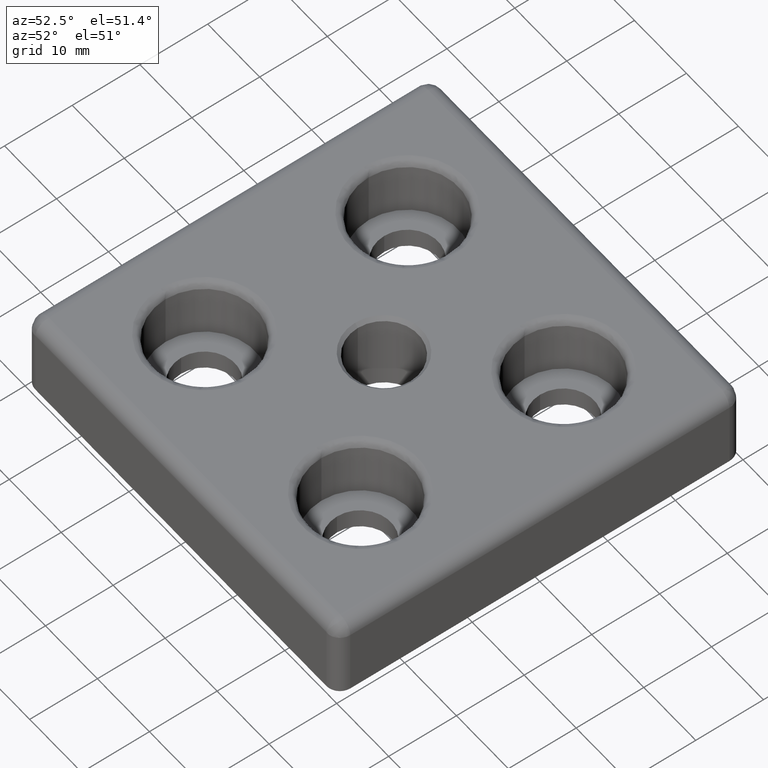
[diagram: clean part render]
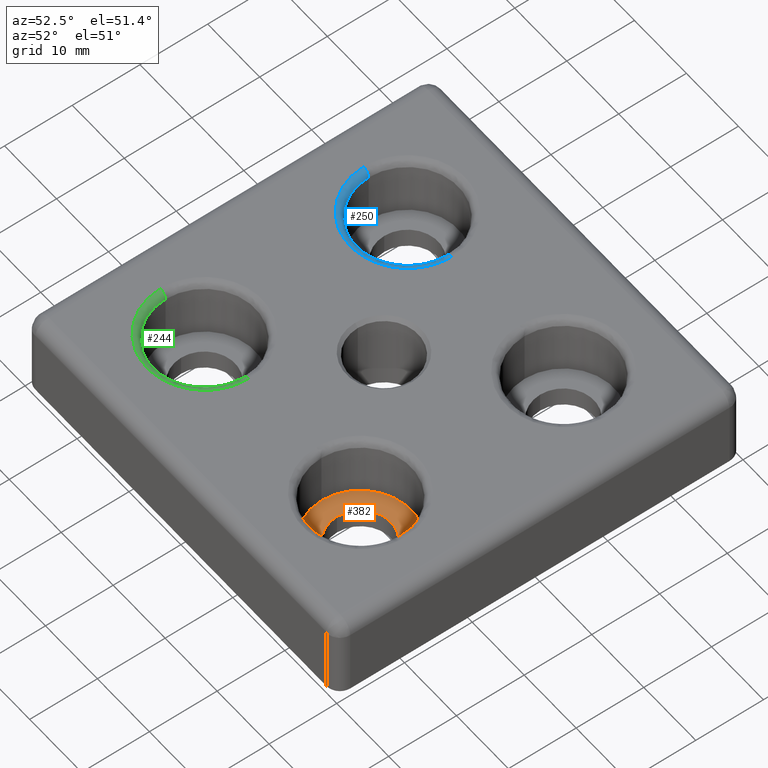
[diagram: same view with three faces highlighted in distinct colors, each labeled with its STEP entity id]
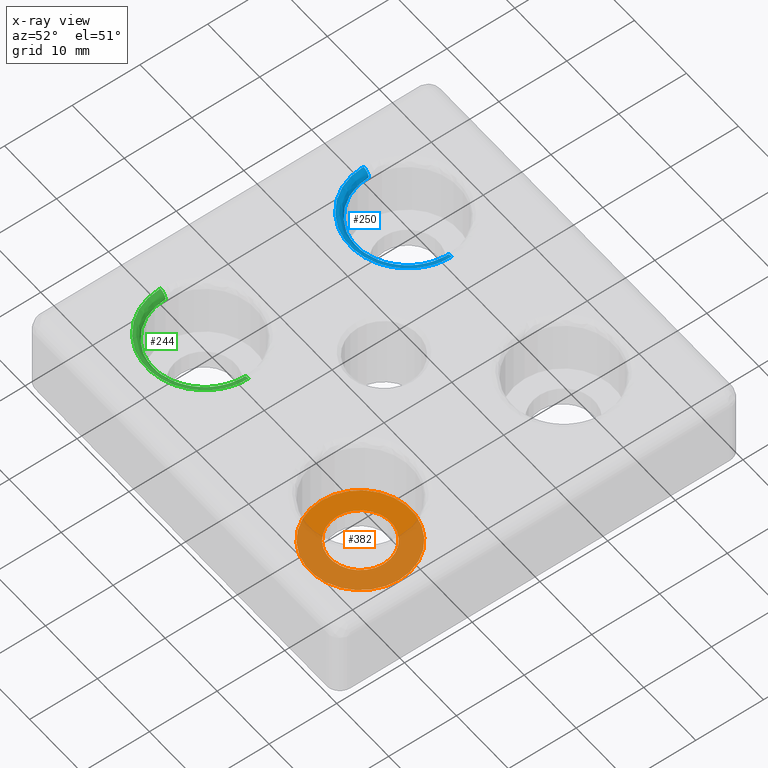
[diagram: x-ray of the same camera — body ghosted, the three highlighted faces saturated]
A machine part, auxiliary view with three faces highlighted in distinct colors.
The next image is the same camera in x-ray (body ghosted, the three faces saturated) — at least one of them is partly hidden behind the body in this view.
Their STEP definitions:

[orange] entity #382 — the highlighted planar face has unit normal (0, 0, 1).
#382=ADVANCED_FACE('NONE',(#883,#884),#885,.T.);
#883=FACE_OUTER_BOUND('',#2126,.T.);
#884=FACE_BOUND('',#2127,.T.);
#885=PLANE('',#2128);
#2126=EDGE_LOOP('',(#3932,#3933));
#2127=EDGE_LOOP('',(#3934,#3935));
#2128=AXIS2_PLACEMENT_3D('',#3936,#3937,#3938);
#3932=ORIENTED_EDGE('',*,*,#5086,.T.);
#3933=ORIENTED_EDGE('',*,*,#4957,.T.);
#3934=ORIENTED_EDGE('',*,*,#5174,.T.);
#3935=ORIENTED_EDGE('',*,*,#4984,.T.);
#3936=CARTESIAN_POINT('',(15.0,-15.0,3.0));
#3937=DIRECTION('',(0.0,0.0,1.0));
#3938=DIRECTION('',(1.0,-0.0,0.0));
#4957=EDGE_CURVE('NONE',#5758,#5759,#5760,.T.);
#4984=EDGE_CURVE('NONE',#5803,#5804,#5805,.T.);
#5086=EDGE_CURVE('NONE',#5759,#5758,#5952,.T.);
#5174=EDGE_CURVE('NONE',#5804,#5803,#6074,.T.);
#5758=VERTEX_POINT('NONE',#6858);
#5759=VERTEX_POINT('NONE',#6859);
#5760=CIRCLE('',#6860,7.5);
#5803=VERTEX_POINT('NONE',#6915);
#5804=VERTEX_POINT('NONE',#6916);
#5805=CIRCLE('',#6917,4.5);
#5952=CIRCLE('',#7136,7.5);
#6074=CIRCLE('',#7282,4.5);
#6858=CARTESIAN_POINT('',(7.5,-15.0,3.0));
#6859=CARTESIAN_POINT('',(22.5,-15.0,3.0));
#6860=AXIS2_PLACEMENT_3D('',#8614,#8615,#8616);
#6915=CARTESIAN_POINT('',(19.5,-15.0,3.0));
#6916=CARTESIAN_POINT('',(10.5,-15.0,3.0));
#6917=AXIS2_PLACEMENT_3D('',#8653,#8654,#8655);
#7136=AXIS2_PLACEMENT_3D('',#8805,#8806,#8807);
#7282=AXIS2_PLACEMENT_3D('',#8982,#8983,#8984);
#8614=CARTESIAN_POINT('',(15.0,-15.0,3.0));
#8615=DIRECTION('',(0.0,0.0,1.0));
#8616=DIRECTION('',(1.0,0.0,0.0));
#8653=CARTESIAN_POINT('',(15.0,-15.0,3.0));
#8654=DIRECTION('',(0.0,0.0,-1.0));
#8655=DIRECTION('',(-1.0,0.0,0.0));
#8805=CARTESIAN_POINT('',(15.0,-15.0,3.0));
#8806=DIRECTION('',(0.0,0.0,1.0));
#8807=DIRECTION('',(1.0,0.0,0.0));
#8982=CARTESIAN_POINT('',(15.0,-15.0,3.0));
#8983=DIRECTION('',(0.0,0.0,-1.0));
#8984=DIRECTION('',(-1.0,0.0,0.0));

[blue] entity #250 — the highlighted face is a freeform B-spline surface patch.
#250=ADVANCED_FACE('NONE',(#670),#671,.T.);
#670=FACE_OUTER_BOUND('',#1341,.T.);
#671=(B_SPLINE_SURFACE(3,3,((#1343,#1344,#1345,#1346),(#1347,#1348,#1349,#1350),(#1351,#1352,#1353,#1354),(#1355,#1356,#1357,#1358)),.UNSPECIFIED.,.F.,.F.,.F.)B_SPLINE_SURFACE_WITH_KNOTS((4,4),(4,4),(0.0,1.0),(0.0,1.0),.UNSPECIFIED.)RATIONAL_B_SPLINE_SURFACE(((1.0,0.333333333333333,0.333333333333333,1.0),(0.804737854124365,0.268245951374788,0.268245951374788,0.804737854124365),(0.804737854124365,0.268245951374788,0.268245951374788,0.804737854124365),(1.0,0.333333333333333,0.333333333333333,1.0)))BOUNDED_SURFACE()REPRESENTATION_ITEM('')GEOMETRIC_REPRESENTATION_ITEM()SURFACE());
#1341=EDGE_LOOP('',(#3377,#3378,#3379,#3380));
#1343=CARTESIAN_POINT('',(-6.5,15.0,12.0));
#1344=CARTESIAN_POINT('',(-6.5,-2.0,12.0));
#1345=CARTESIAN_POINT('',(-23.5,-2.0,12.0));
#1346=CARTESIAN_POINT('',(-23.5,15.0,12.0));
#1347=CARTESIAN_POINT('',(-7.0857864376269,15.0,12.0));
#1348=CARTESIAN_POINT('',(-7.0857864376269,-0.828427124746191,12.0));
#1349=CARTESIAN_POINT('',(-22.9142135623731,-0.828427124746192,12.0));
#1350=CARTESIAN_POINT('',(-22.9142135623731,15.0,12.0));
#1351=CARTESIAN_POINT('',(-7.5,15.0,11.5857864376269));
#1352=CARTESIAN_POINT('',(-7.5,0.0,11.5857864376269));
#1353=CARTESIAN_POINT('',(-22.5,-6.93889390390723E-015,11.5857864376269));
#1354=CARTESIAN_POINT('',(-22.5,15.0,11.5857864376269));
#1355=CARTESIAN_POINT('',(-7.5,15.0,11.0));
#1356=CARTESIAN_POINT('',(-7.5,0.0,11.0));
#1357=CARTESIAN_POINT('',(-22.5,-6.93889390390723E-015,11.0));
#1358=CARTESIAN_POINT('',(-22.5,15.0,11.0));
#3377=ORIENTED_EDGE('',*,*,#4852,.T.);
#3378=ORIENTED_EDGE('',*,*,#4853,.T.);
#3379=ORIENTED_EDGE('',*,*,#4854,.T.);
#3380=ORIENTED_EDGE('',*,*,#4855,.F.);
#4852=EDGE_CURVE('NONE',#5580,#5581,#5582,.T.);
#4853=EDGE_CURVE('NONE',#5581,#5583,#5584,.T.);
#4854=EDGE_CURVE('NONE',#5583,#5585,#5586,.T.);
#4855=EDGE_CURVE('NONE',#5580,#5585,#5587,.T.);
#5580=VERTEX_POINT('NONE',#6583);
#5581=VERTEX_POINT('NONE',#6584);
#5582=(B_SPLINE_CURVE(3,(#6586,#6587,#6588,#6589),.UNSPECIFIED.,.F.,.F.)B_SPLINE_CURVE_WITH_KNOTS((4,4),(0.0,1.0),.UNSPECIFIED.)RATIONAL_B_SPLINE_CURVE((1.0,0.333333333333333,0.333333333333333,1.0))BOUNDED_CURVE()REPRESENTATION_ITEM('')GEOMETRIC_REPRESENTATION_ITEM()CURVE());
#5583=VERTEX_POINT('NONE',#6596);
#5584=CIRCLE('',#6597,1.0);
#5585=VERTEX_POINT('NONE',#6598);
#5586=CIRCLE('',#6599,7.5);
#5587=CIRCLE('',#6600,1.0);
#6583=CARTESIAN_POINT('',(-23.5,15.0,12.0));
#6584=CARTESIAN_POINT('',(-6.5,15.0,12.0));
#6586=CARTESIAN_POINT('',(-23.5,15.0,12.0));
#6587=CARTESIAN_POINT('',(-23.5,-2.0,12.0));
#6588=CARTESIAN_POINT('',(-6.5,-2.0,12.0));
#6589=CARTESIAN_POINT('',(-6.5,15.0,12.0));
#6596=CARTESIAN_POINT('',(-7.5,15.0,11.0));
#6597=AXIS2_PLACEMENT_3D('',#8401,#8402,#8403);
#6598=CARTESIAN_POINT('',(-22.5,15.0,11.0));
#6599=AXIS2_PLACEMENT_3D('',#8404,#8405,#8406);
#6600=AXIS2_PLACEMENT_3D('',#8407,#8408,#8409);
#8401=CARTESIAN_POINT('',(-6.5,15.0,11.0));
#8402=DIRECTION('',(0.0,-1.0,0.0));
#8403=DIRECTION('',(1.0,0.0,0.0));
#8404=CARTESIAN_POINT('',(-15.0,15.0,11.0));
#8405=DIRECTION('',(0.0,0.0,-1.0));
#8406=DIRECTION('',(-1.0,0.0,0.0));
#8407=CARTESIAN_POINT('',(-23.5,15.0,11.0));
#8408=DIRECTION('',(0.0,1.0,0.0));
#8409=DIRECTION('',(-1.0,0.0,0.0));

[green] entity #244 — the highlighted face is a freeform B-spline surface patch.
#244=ADVANCED_FACE('NONE',(#661),#662,.T.);
#661=FACE_OUTER_BOUND('',#1266,.T.);
#662=(B_SPLINE_SURFACE(3,3,((#1268,#1269,#1270,#1271),(#1272,#1273,#1274,#1275),(#1276,#1277,#1278,#1279),(#1280,#1281,#1282,#1283)),.UNSPECIFIED.,.F.,.F.,.F.)B_SPLINE_SURFACE_WITH_KNOTS((4,4),(4,4),(0.0,1.0),(0.0,1.0),.UNSPECIFIED.)RATIONAL_B_SPLINE_SURFACE(((1.0,0.333333333333333,0.333333333333333,1.0),(0.804737854124365,0.268245951374788,0.268245951374788,0.804737854124365),(0.804737854124365,0.268245951374788,0.268245951374788,0.804737854124365),(1.0,0.333333333333333,0.333333333333333,1.0)))BOUNDED_SURFACE()REPRESENTATION_ITEM('')GEOMETRIC_REPRESENTATION_ITEM()SURFACE());
#1266=EDGE_LOOP('',(#3362,#3363,#3364,#3365));
#1268=CARTESIAN_POINT('',(-6.49999999999999,-15.0,12.0));
#1269=CARTESIAN_POINT('',(-6.49999999999999,-32.0,12.0));
#1270=CARTESIAN_POINT('',(-23.5,-32.0,12.0));
#1271=CARTESIAN_POINT('',(-23.5,-15.0,12.0));
#1272=CARTESIAN_POINT('',(-7.0857864376269,-15.0,12.0));
#1273=CARTESIAN_POINT('',(-7.0857864376269,-30.8284271247462,12.0));
#1274=CARTESIAN_POINT('',(-22.9142135623731,-30.8284271247462,12.0));
#1275=CARTESIAN_POINT('',(-22.9142135623731,-15.0,12.0));
#1276=CARTESIAN_POINT('',(-7.49999999999999,-15.0,11.5857864376269));
#1277=CARTESIAN_POINT('',(-7.49999999999999,-30.0,11.5857864376269));
#1278=CARTESIAN_POINT('',(-22.5,-30.0,11.5857864376269));
#1279=CARTESIAN_POINT('',(-22.5,-15.0,11.5857864376269));
#1280=CARTESIAN_POINT('',(-7.49999999999999,-15.0,11.0));
#1281=CARTESIAN_POINT('',(-7.49999999999999,-30.0,11.0));
#1282=CARTESIAN_POINT('',(-22.5,-30.0,11.0));
#1283=CARTESIAN_POINT('',(-22.5,-15.0,11.0));
#3362=ORIENTED_EDGE('',*,*,#4837,.T.);
#3363=ORIENTED_EDGE('',*,*,#4838,.T.);
#3364=ORIENTED_EDGE('',*,*,#4839,.T.);
#3365=ORIENTED_EDGE('',*,*,#4840,.F.);
#4837=EDGE_CURVE('NONE',#5553,#5554,#5555,.T.);
#4838=EDGE_CURVE('NONE',#5554,#5556,#5557,.T.);
#4839=EDGE_CURVE('NONE',#5556,#5558,#5559,.T.);
#4840=EDGE_CURVE('NONE',#5553,#5558,#5560,.T.);
#5553=VERTEX_POINT('NONE',#6526);
#5554=VERTEX_POINT('NONE',#6527);
#5555=(B_SPLINE_CURVE(3,(#6529,#6530,#6531,#6532),.UNSPECIFIED.,.F.,.F.)B_SPLINE_CURVE_WITH_KNOTS((4,4),(0.0,1.0),.UNSPECIFIED.)RATIONAL_B_SPLINE_CURVE((1.0,0.333333333333333,0.333333333333333,1.0))BOUNDED_CURVE()REPRESENTATION_ITEM('')GEOMETRIC_REPRESENTATION_ITEM()CURVE());
#5556=VERTEX_POINT('NONE',#6539);
#5557=CIRCLE('',#6540,1.0);
#5558=VERTEX_POINT('NONE',#6541);
#5559=CIRCLE('',#6542,7.5);
#5560=CIRCLE('',#6543,1.0);
#6526=CARTESIAN_POINT('',(-23.5,-15.0,12.0));
#6527=CARTESIAN_POINT('',(-6.49999999999999,-15.0,12.0));
#6529=CARTESIAN_POINT('',(-23.5,-15.0,12.0));
#6530=CARTESIAN_POINT('',(-23.5,-32.0,12.0));
#6531=CARTESIAN_POINT('',(-6.49999999999999,-32.0,12.0));
#6532=CARTESIAN_POINT('',(-6.49999999999999,-15.0,12.0));
#6539=CARTESIAN_POINT('',(-7.49999999999999,-15.0,11.0));
#6540=AXIS2_PLACEMENT_3D('',#8374,#8375,#8376);
#6541=CARTESIAN_POINT('',(-22.5,-15.0,11.0));
#6542=AXIS2_PLACEMENT_3D('',#8377,#8378,#8379);
#6543=AXIS2_PLACEMENT_3D('',#8380,#8381,#8382);
#8374=CARTESIAN_POINT('',(-6.49999999999999,-15.0,11.0));
#8375=DIRECTION('',(0.0,-1.0,0.0));
#8376=DIRECTION('',(1.0,0.0,0.0));
#8377=CARTESIAN_POINT('',(-15.0,-15.0,11.0));
#8378=DIRECTION('',(0.0,0.0,-1.0));
#8379=DIRECTION('',(-1.0,0.0,0.0));
#8380=CARTESIAN_POINT('',(-23.5,-15.0,11.0));
#8381=DIRECTION('',(0.0,1.0,0.0));
#8382=DIRECTION('',(-1.0,0.0,0.0));